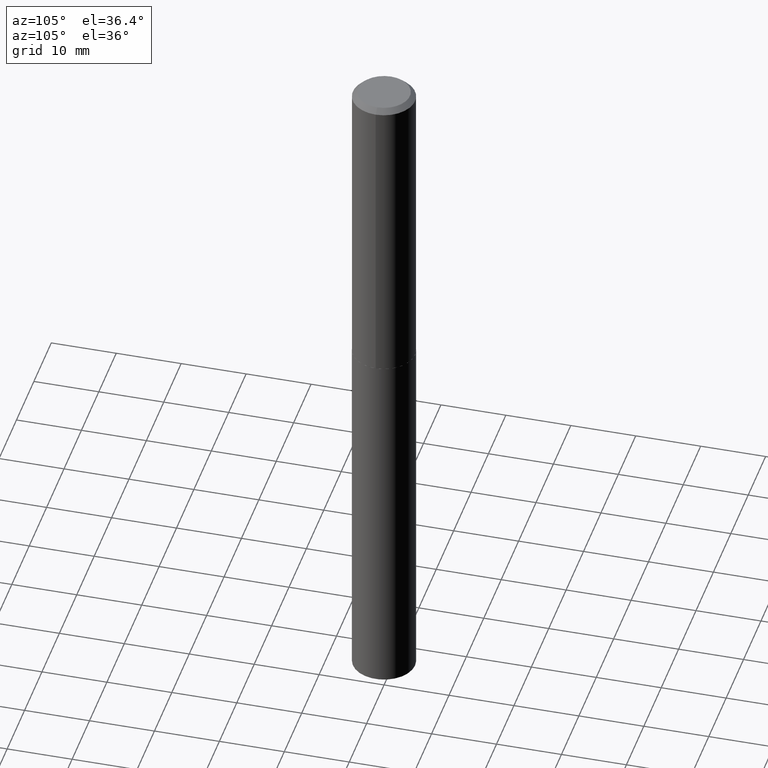
[diagram: clean part render]
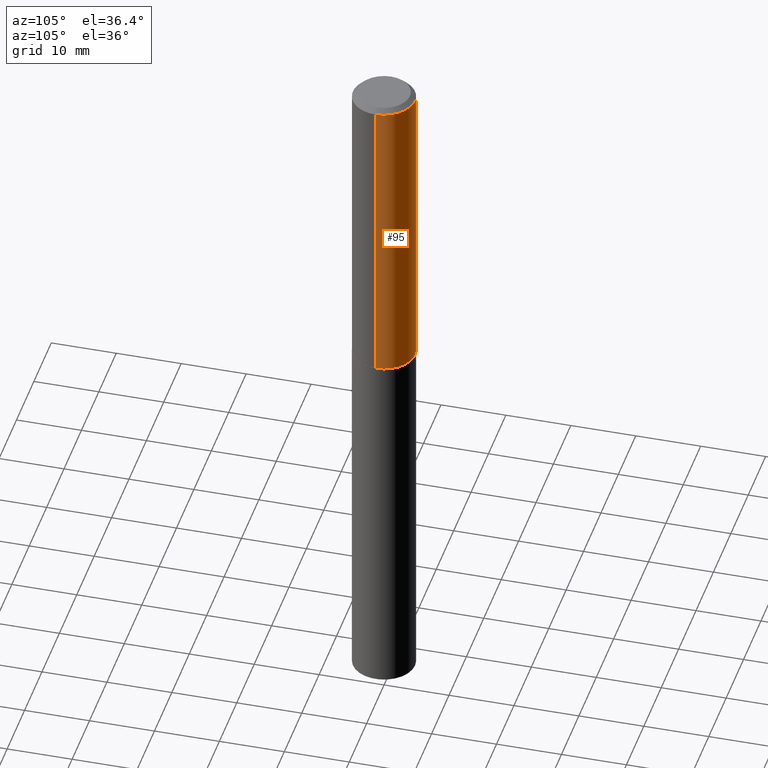
[diagram: same view with one face highlighted and labeled with its STEP entity id]
A machine part, auxiliary view. The second image highlights one B-rep face of the part: STEP entity #95.
In plain terms, the highlighted cylindrical surface (edge-blend (fillet) strip) has radius 4.7879 mm, axis along (-0, 0, 1).
Its self-contained STEP definition (entity closure, byte-faithful):
#4 = DIRECTION ( 'NONE',  ( -2.445468806185136597E-29, 3.491481338843145583E-15, 1.000000000000000000 ) ) ;
#6 = VERTEX_POINT ( 'NONE', #379 ) ;
#12 = ORIENTED_EDGE ( 'NONE', *, *, #375, .F. ) ;
#13 = DIRECTION ( 'NONE',  ( -2.445468806185136877E-29, 3.491481338843145188E-15, 1.000000000000000000 ) ) ;
#24 = ORIENTED_EDGE ( 'NONE', *, *, #27, .T. ) ;
#27 = EDGE_CURVE ( 'NONE', #248, #325, #308, .T. ) ;
#30 = DIRECTION ( 'NONE',  ( 1.000000000000000000, -6.982962677686266711E-15, 4.876176775795936353E-29 ) ) ;
#41 = AXIS2_PLACEMENT_3D ( 'NONE', #359, #4, #133 ) ;
#53 = DIRECTION ( 'NONE',  ( -2.445468806185136597E-29, 3.491481338843145583E-15, 1.000000000000000000 ) ) ;
#56 = VECTOR ( 'NONE', #106, 39.37007874015748143 ) ;
#95 = ADVANCED_FACE ( 'NONE', ( #166 ), #356, .T. ) ;
#101 = AXIS2_PLACEMENT_3D ( 'NONE', #198, #53, #30 ) ;
#106 = DIRECTION ( 'NONE',  ( -2.445468806185136877E-29, 3.491481338843145188E-15, 1.000000000000000000 ) ) ;
#107 = LINE ( 'NONE', #232, #191 ) ;
#114 = CARTESIAN_POINT ( 'NONE',  ( 4.588922214806407281E-29, -6.551764732339160851E-15, -1.876499999999999613 ) ) ;
#117 = CIRCLE ( 'NONE', #41, 0.1885000000000000286 ) ;
#125 = DIRECTION ( 'NONE',  ( 1.000000000000000000, -6.982962677686264344E-15, 0.000000000000000000 ) ) ;
#133 = DIRECTION ( 'NONE',  ( 1.000000000000000000, -6.982962677686266711E-15, 0.000000000000000000 ) ) ;
#143 = CARTESIAN_POINT ( 'NONE',  ( 0.1885000000000002507, -7.868053197083023451E-15, -1.876499999999999613 ) ) ;
#151 = ORIENTED_EDGE ( 'NONE', *, *, #174, .F. ) ;
#166 = FACE_OUTER_BOUND ( 'NONE', #349, .T. ) ;
#174 = EDGE_CURVE ( 'NONE', #6, #289, #117, .T. ) ;
#179 = AXIS2_PLACEMENT_3D ( 'NONE', #114, #387, #125 ) ;
#191 = VECTOR ( 'NONE', #13, 39.37007874015748143 ) ;
#193 = CARTESIAN_POINT ( 'NONE',  ( -0.1885000000000002507, -5.212391675431369628E-15, -1.876499999999999613 ) ) ;
#198 = CARTESIAN_POINT ( 'NONE',  ( 0.000000000000000000, 0.000000000000000000, 0.000000000000000000 ) ) ;
#209 = ORIENTED_EDGE ( 'NONE', *, *, #365, .T. ) ;
#230 = CARTESIAN_POINT ( 'NONE',  ( 0.1885000000000001119, -1.316288464743862009E-15, 9.191593222375345023E-30 ) ) ;
#232 = CARTESIAN_POINT ( 'NONE',  ( -0.1885000000000001119, 1.339373056907789646E-15, -9.272192645130503377E-30 ) ) ;
#248 = VERTEX_POINT ( 'NONE', #143 ) ;
#274 = CARTESIAN_POINT ( 'NONE',  ( -0.1885000000000000286, -1.991063705181214936E-15, -0.03125000000000023592 ) ) ;
#289 = VERTEX_POINT ( 'NONE', #274 ) ;
#308 = CIRCLE ( 'NONE', #179, 0.1885000000000002507 ) ;
#325 = VERTEX_POINT ( 'NONE', #193 ) ;
#343 = LINE ( 'NONE', #230, #56 ) ;
#349 = EDGE_LOOP ( 'NONE', ( #24, #209, #151, #12 ) ) ;
#356 = CYLINDRICAL_SURFACE ( 'NONE', #101, 0.1885000000000001119 ) ;
#359 = CARTESIAN_POINT ( 'NONE',  ( 7.642090019328608793E-31, -1.091087918388491130E-16, -0.03125000000000023592 ) ) ;
#365 = EDGE_CURVE ( 'NONE', #325, #289, #107, .T. ) ;
#375 = EDGE_CURVE ( 'NONE', #248, #6, #343, .T. ) ;
#379 = CARTESIAN_POINT ( 'NONE',  ( 0.1885000000000000286, -1.425397256582710518E-15, -0.03125000000000023592 ) ) ;
#387 = DIRECTION ( 'NONE',  ( -2.445468806185136597E-29, 3.491481338843145583E-15, 1.000000000000000000 ) ) ;